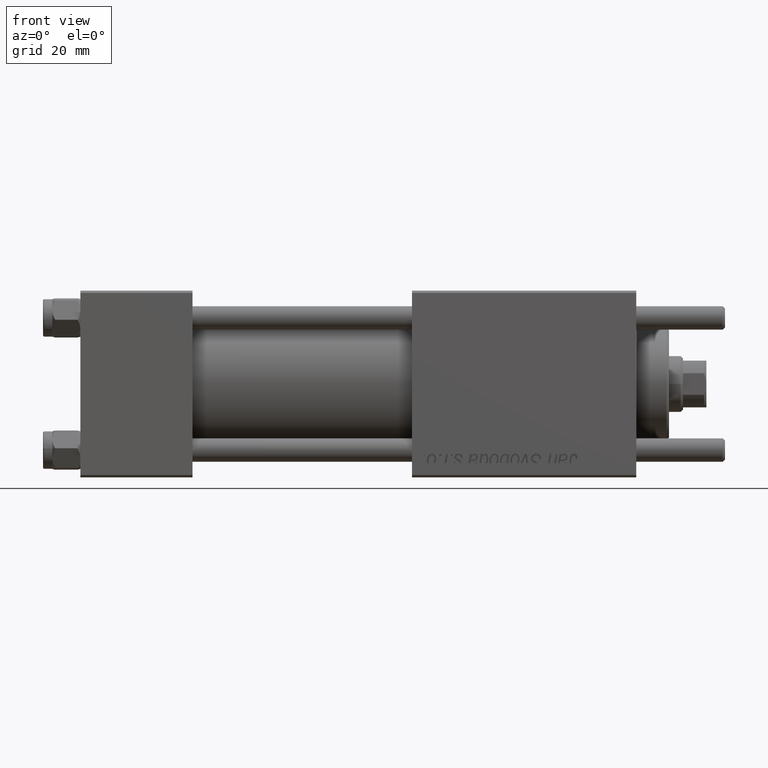
[diagram: clean part render]
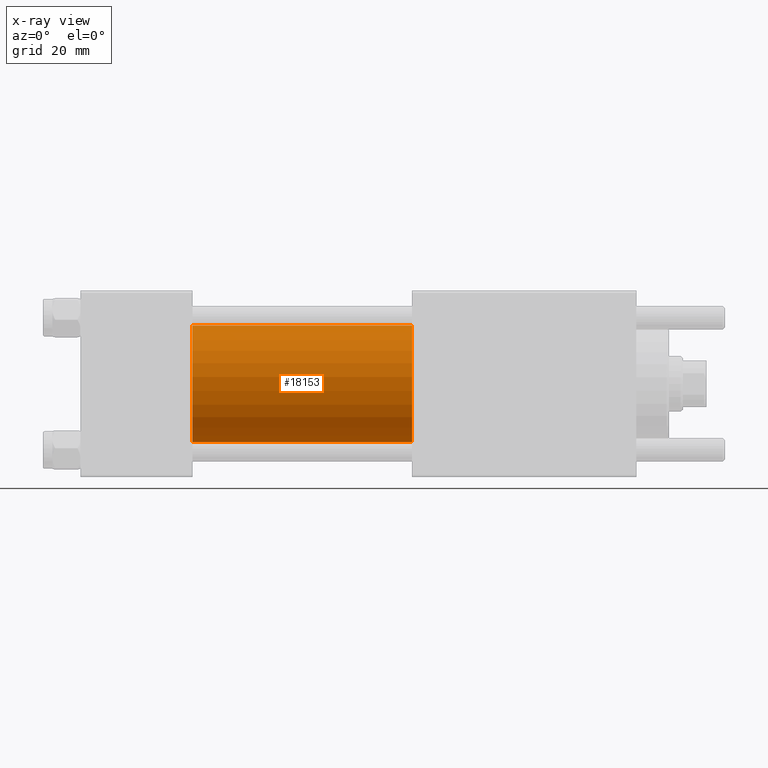
[diagram: x-ray — body ghosted, one internal face saturated and labeled with its STEP entity id]
A machine part, front view, then the same camera in x-ray: the body is ghosted and one INTERNAL B-rep face — a face not visible from any outside direction — is saturated and labeled: STEP entity #18153.
In plain terms, the highlighted cylindrical surface (partial cylindrical patch) has radius 12.5 mm, axis along (-1, -0, -0).
Its self-contained STEP definition (entity closure, byte-faithful):
#2351 = VERTEX_POINT ( 'NONE', #15929 ) ;
#3184 = VECTOR ( 'NONE', #47809, 1000.000000000000000 ) ;
#4088 = CARTESIAN_POINT ( 'NONE',  ( 71.00000000000001421, -2.602085213965210642E-15, 12.49999999999999645 ) ) ;
#4700 = EDGE_LOOP ( 'NONE', ( #11671, #15064, #46990, #53289 ) ) ;
#5036 = CYLINDRICAL_SURFACE ( 'NONE', #17311, 12.49999999999999645 ) ;
#6387 = CARTESIAN_POINT ( 'NONE',  ( 71.00000000000001421, -2.602085213965210642E-15, 0.000000000000000000 ) ) ;
#6621 = EDGE_CURVE ( 'NONE', #33116, #2351, #33071, .T. ) ;
#8123 = DIRECTION ( 'NONE',  ( 1.000000000000000000, 0.000000000000000000, 0.000000000000000000 ) ) ;
#9264 = DIRECTION ( 'NONE',  ( 0.000000000000000000, 0.000000000000000000, -1.000000000000000000 ) ) ;
#11060 = EDGE_CURVE ( 'NONE', #40368, #32506, #45260, .T. ) ;
#11671 = ORIENTED_EDGE ( 'NONE', *, *, #11060, .T. ) ;
#15064 = ORIENTED_EDGE ( 'NONE', *, *, #23159, .T. ) ;
#15929 = CARTESIAN_POINT ( 'NONE',  ( 24.00000000000000000, -1.071276715031019515E-15, -12.49999999999999645 ) ) ;
#16825 = LINE ( 'NONE', #34368, #53308 ) ;
#17311 = AXIS2_PLACEMENT_3D ( 'NONE', #6387, #31799, #54718 ) ;
#18153 = ADVANCED_FACE ( 'NONE', ( #40140 ), #5036, .F. ) ;
#23159 = EDGE_CURVE ( 'NONE', #32506, #2351, #16825, .T. ) ;
#31267 = CARTESIAN_POINT ( 'NONE',  ( 24.00000000000000000, -2.602085213965210642E-15, 0.000000000000000000 ) ) ;
#31799 = DIRECTION ( 'NONE',  ( -1.000000000000000000, -0.000000000000000000, -0.000000000000000000 ) ) ;
#31960 = CARTESIAN_POINT ( 'NONE',  ( 71.00000000000001421, -1.071276715031019515E-15, -12.49999999999999645 ) ) ;
#32506 = VERTEX_POINT ( 'NONE', #31960 ) ;
#33071 = CIRCLE ( 'NONE', #39514, 12.49999999999999645 ) ;
#33116 = VERTEX_POINT ( 'NONE', #34995 ) ;
#34368 = CARTESIAN_POINT ( 'NONE',  ( 71.00000000000001421, -1.071276715031019515E-15, -12.49999999999999645 ) ) ;
#34995 = CARTESIAN_POINT ( 'NONE',  ( 24.00000000000000000, -2.602085213965210642E-15, 12.49999999999999645 ) ) ;
#39514 = AXIS2_PLACEMENT_3D ( 'NONE', #31267, #53724, #44511 ) ;
#40140 = FACE_OUTER_BOUND ( 'NONE', #4700, .T. ) ;
#40368 = VERTEX_POINT ( 'NONE', #41031 ) ;
#40732 = EDGE_CURVE ( 'NONE', #40368, #33116, #51850, .T. ) ;
#41031 = CARTESIAN_POINT ( 'NONE',  ( 71.00000000000001421, -2.602085213965210642E-15, 12.49999999999999645 ) ) ;
#43527 = CARTESIAN_POINT ( 'NONE',  ( 71.00000000000001421, -2.602085213965210642E-15, 0.000000000000000000 ) ) ;
#44511 = DIRECTION ( 'NONE',  ( 0.000000000000000000, 0.000000000000000000, -1.000000000000000000 ) ) ;
#45260 = CIRCLE ( 'NONE', #50755, 12.49999999999999645 ) ;
#46990 = ORIENTED_EDGE ( 'NONE', *, *, #6621, .F. ) ;
#47809 = DIRECTION ( 'NONE',  ( -1.000000000000000000, -0.000000000000000000, -0.000000000000000000 ) ) ;
#47877 = DIRECTION ( 'NONE',  ( -1.000000000000000000, -0.000000000000000000, -0.000000000000000000 ) ) ;
#50755 = AXIS2_PLACEMENT_3D ( 'NONE', #43527, #8123, #9264 ) ;
#51850 = LINE ( 'NONE', #4088, #3184 ) ;
#53289 = ORIENTED_EDGE ( 'NONE', *, *, #40732, .F. ) ;
#53308 = VECTOR ( 'NONE', #47877, 1000.000000000000000 ) ;
#53724 = DIRECTION ( 'NONE',  ( 1.000000000000000000, 0.000000000000000000, 0.000000000000000000 ) ) ;
#54718 = DIRECTION ( 'NONE',  ( 0.000000000000000000, 0.000000000000000000, 1.000000000000000000 ) ) ;